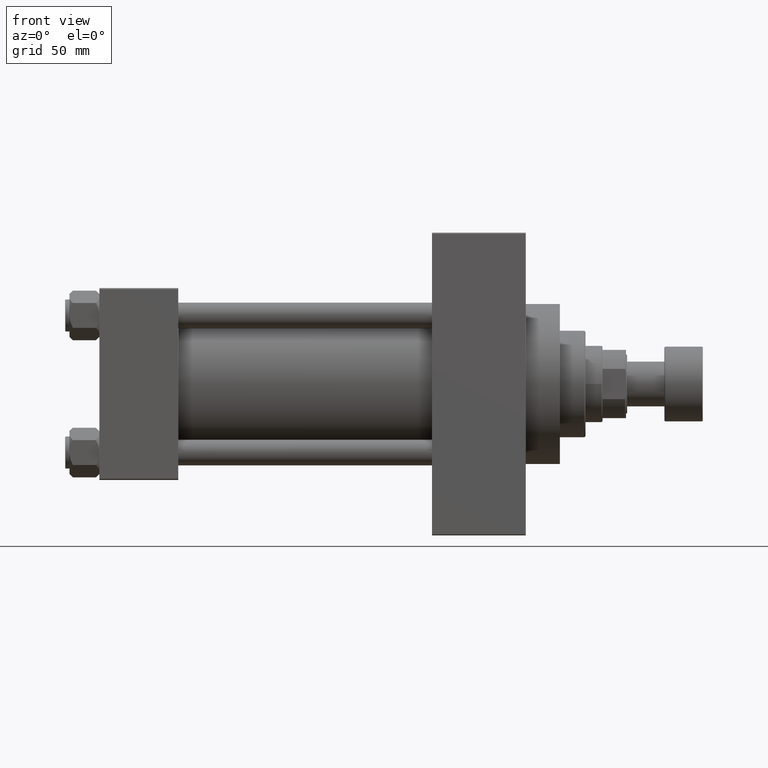
[diagram: clean part render]
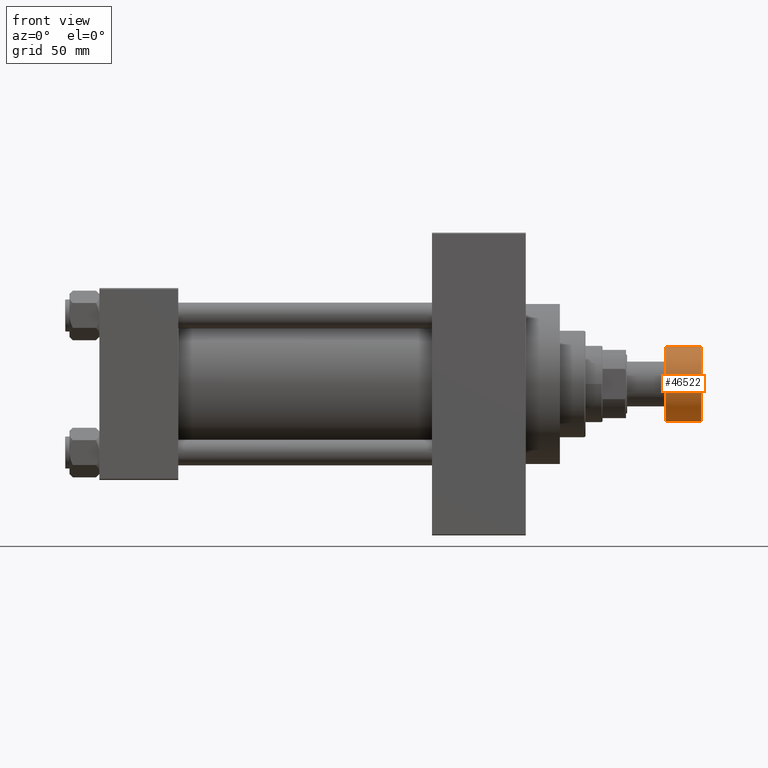
[diagram: same view with one face highlighted and labeled with its STEP entity id]
A machine part, front view. The second image highlights one B-rep face of the part: STEP entity #46522.
In plain terms, the highlighted cylindrical surface (partial cylindrical patch) has radius 17.5 mm, axis along (1, 0, 0).
Its self-contained STEP definition (entity closure, byte-faithful):
#780 = DIRECTION ( 'NONE',  ( 0.000000000000000000, 0.000000000000000000, 1.000000000000000000 ) ) ;
#1319 = DIRECTION ( 'NONE',  ( -0.000000000000000000, -0.000000000000000000, -1.000000000000000000 ) ) ;
#5472 = EDGE_LOOP ( 'NONE', ( #47374, #13355, #20658, #15790 ) ) ;
#5634 = CARTESIAN_POINT ( 'NONE',  ( -17.50000000000000355, 2.143131898507868643E-15, -17.49999999999999645 ) ) ;
#7691 = DIRECTION ( 'NONE',  ( 0.000000000000000000, 0.000000000000000000, 1.000000000000000000 ) ) ;
#9018 = CARTESIAN_POINT ( 'NONE',  ( 0.000000000000000000, 0.000000000000000000, -0.5000000000000004441 ) ) ;
#10995 = DIRECTION ( 'NONE',  ( 0.000000000000000000, 0.000000000000000000, 1.000000000000000000 ) ) ;
#11134 = CARTESIAN_POINT ( 'NONE',  ( 0.000000000000000000, 0.000000000000000000, -18.00000000000000000 ) ) ;
#12267 = VERTEX_POINT ( 'NONE', #20074 ) ;
#13355 = ORIENTED_EDGE ( 'NONE', *, *, #15865, .T. ) ;
#13599 = AXIS2_PLACEMENT_3D ( 'NONE', #44096, #7691, #29392 ) ;
#14748 = CARTESIAN_POINT ( 'NONE',  ( 17.50000000000000355, 0.000000000000000000, -18.00000000000000000 ) ) ;
#15790 = ORIENTED_EDGE ( 'NONE', *, *, #44198, .T. ) ;
#15865 = EDGE_CURVE ( 'NONE', #20709, #29432, #16704, .T. ) ;
#16704 = CIRCLE ( 'NONE', #13599, 17.50000000000000355 ) ;
#17557 = VECTOR ( 'NONE', #780, 1000.000000000000000 ) ;
#18592 = VERTEX_POINT ( 'NONE', #31239 ) ;
#20074 = CARTESIAN_POINT ( 'NONE',  ( -17.50000000000000355, 2.143131898507868643E-15, -0.5000000000000004441 ) ) ;
#20658 = ORIENTED_EDGE ( 'NONE', *, *, #22040, .T. ) ;
#20709 = VERTEX_POINT ( 'NONE', #5634 ) ;
#22040 = EDGE_CURVE ( 'NONE', #29432, #18592, #33813, .T. ) ;
#23536 = CIRCLE ( 'NONE', #28150, 17.50000000000000355 ) ;
#23723 = CARTESIAN_POINT ( 'NONE',  ( 17.50000000000000355, 0.000000000000000000, -17.49999999999999645 ) ) ;
#28150 = AXIS2_PLACEMENT_3D ( 'NONE', #9018, #1319, #37733 ) ;
#29223 = DIRECTION ( 'NONE',  ( 0.000000000000000000, 0.000000000000000000, 1.000000000000000000 ) ) ;
#29392 = DIRECTION ( 'NONE',  ( 1.000000000000000000, 0.000000000000000000, 0.000000000000000000 ) ) ;
#29432 = VERTEX_POINT ( 'NONE', #23723 ) ;
#31239 = CARTESIAN_POINT ( 'NONE',  ( 17.50000000000000355, 0.000000000000000000, -0.5000000000000004441 ) ) ;
#32616 = DIRECTION ( 'NONE',  ( 1.000000000000000000, 0.000000000000000000, 0.000000000000000000 ) ) ;
#33813 = LINE ( 'NONE', #14748, #17557 ) ;
#35812 = VECTOR ( 'NONE', #10995, 1000.000000000000000 ) ;
#35872 = CARTESIAN_POINT ( 'NONE',  ( -17.50000000000000355, 2.143131898507868643E-15, -18.00000000000000000 ) ) ;
#35950 = AXIS2_PLACEMENT_3D ( 'NONE', #11134, #29223, #32616 ) ;
#36009 = FACE_OUTER_BOUND ( 'NONE', #5472, .T. ) ;
#36718 = CYLINDRICAL_SURFACE ( 'NONE', #35950, 17.50000000000000355 ) ;
#37733 = DIRECTION ( 'NONE',  ( 1.000000000000000000, 0.000000000000000000, 0.000000000000000000 ) ) ;
#41843 = EDGE_CURVE ( 'NONE', #20709, #12267, #44030, .T. ) ;
#44030 = LINE ( 'NONE', #35872, #35812 ) ;
#44096 = CARTESIAN_POINT ( 'NONE',  ( 0.000000000000000000, 0.000000000000000000, -17.49999999999999645 ) ) ;
#44198 = EDGE_CURVE ( 'NONE', #18592, #12267, #23536, .T. ) ;
#46522 = ADVANCED_FACE ( 'NONE', ( #36009 ), #36718, .T. ) ;
#47374 = ORIENTED_EDGE ( 'NONE', *, *, #41843, .F. ) ;